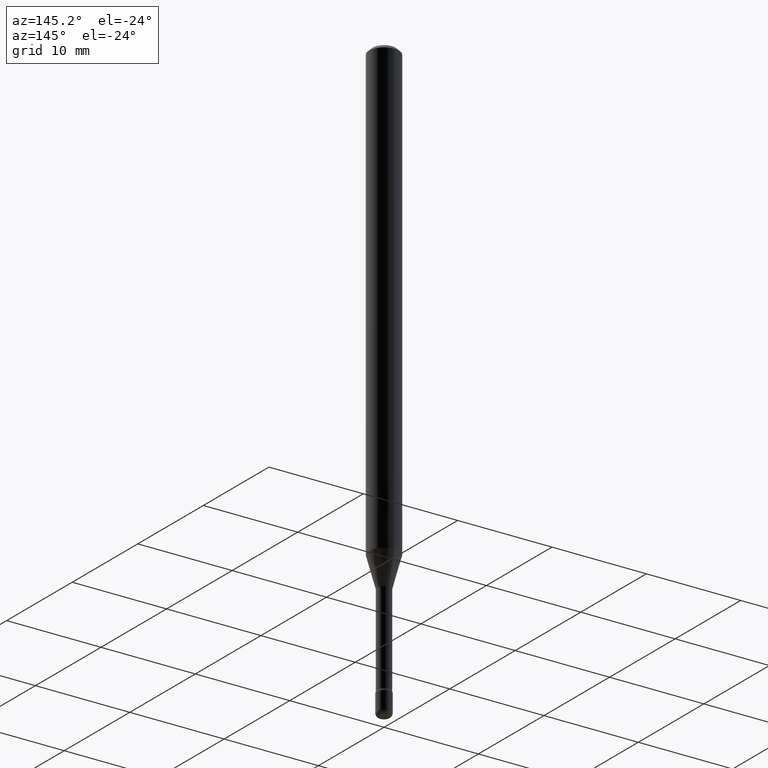
[diagram: clean part render]
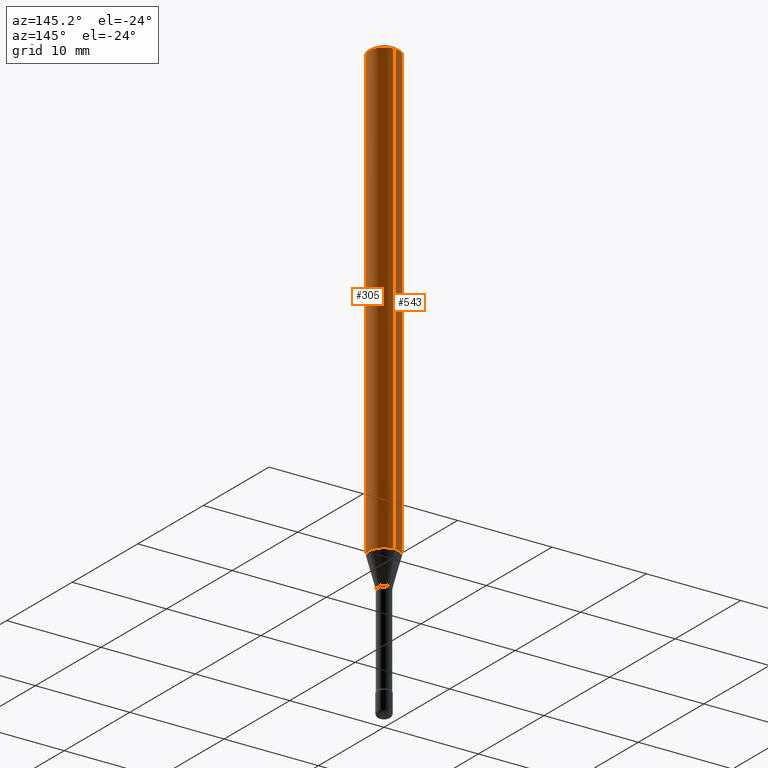
[diagram: same view with one multi-face feature highlighted, each face labeled with its STEP entity id]
A machine part, auxiliary view. The highlighted faces form ONE feature: a constant-radius fillet chain: 2 tangent blend faces with common blend radius 1.5875 mm. The faces share edges in the B-rep.
Their STEP definitions:
[1] entity #543 (Cylinder):
#7 = AXIS2_PLACEMENT_3D ( 'NONE', #520, #309, #563 ) ;
#21 = CARTESIAN_POINT ( 'NONE',  ( 4.440892098500625669E-16, 0.06250000000000000000, 2.598630539589907883E-16 ) ) ;
#34 = DIRECTION ( 'NONE',  ( -2.445549682807936912E-29, 3.491365518916084004E-15, 1.000000000000000000 ) ) ;
#37 = LINE ( 'NONE', #173, #442 ) ;
#41 = CYLINDRICAL_SURFACE ( 'NONE', #7, 0.06250000000000000000 ) ;
#51 = EDGE_CURVE ( 'NONE', #159, #110, #499, .T. ) ;
#74 = CARTESIAN_POINT ( 'NONE',  ( 4.440892098501091590E-16, 0.06249999999999995143, -0.01500000000000024578 ) ) ;
#79 = DIRECTION ( 'NONE',  ( -2.445549682807936912E-29, 3.491365518916084004E-15, 1.000000000000000000 ) ) ;
#99 = ORIENTED_EDGE ( 'NONE', *, *, #556, .T. ) ;
#110 = VERTEX_POINT ( 'NONE', #74 ) ;
#116 = CARTESIAN_POINT ( 'NONE',  ( 3.668324524211912374E-31, -5.237048278374135497E-17, -0.01500000000000002720 ) ) ;
#127 = EDGE_LOOP ( 'NONE', ( #353, #99, #279, #460 ) ) ;
#135 = VECTOR ( 'NONE', #365, 39.37007874015748143 ) ;
#156 = VERTEX_POINT ( 'NONE', #204 ) ;
#159 = VERTEX_POINT ( 'NONE', #511 ) ;
#173 = CARTESIAN_POINT ( 'NONE',  ( -4.364351673553916201E-16, -0.06250000000000000000, 6.962837438235013874E-16 ) ) ;
#204 = CARTESIAN_POINT ( 'NONE',  ( -4.364351673553456197E-16, -0.06250000000000664746, -1.891990657300387513 ) ) ;
#213 = DIRECTION ( 'NONE',  ( -6.982962677686265922E-15, -1.000000000000000000, 3.483106191921935554E-15 ) ) ;
#218 = FACE_OUTER_BOUND ( 'NONE', #127, .T. ) ;
#279 = ORIENTED_EDGE ( 'NONE', *, *, #466, .T. ) ;
#303 = CARTESIAN_POINT ( 'NONE',  ( -4.364351673553912750E-16, -0.06250000000000005551, -0.01499999999999981036 ) ) ;
#308 = CIRCLE ( 'NONE', #322, 0.06250000000000000000 ) ;
#309 = DIRECTION ( 'NONE',  ( -2.445549682807936912E-29, 3.491365518916084004E-15, 1.000000000000000000 ) ) ;
#322 = AXIS2_PLACEMENT_3D ( 'NONE', #566, #79, #514 ) ;
#346 = EDGE_CURVE ( 'NONE', #110, #379, #572, .T. ) ;
#353 = ORIENTED_EDGE ( 'NONE', *, *, #51, .F. ) ;
#365 = DIRECTION ( 'NONE',  ( -2.445549682807936632E-29, 3.491365518916083609E-15, 1.000000000000000000 ) ) ;
#379 = VERTEX_POINT ( 'NONE', #303 ) ;
#432 = DIRECTION ( 'NONE',  ( -2.445549682807936632E-29, 3.491365518916083609E-15, 1.000000000000000000 ) ) ;
#442 = VECTOR ( 'NONE', #432, 39.37007874015748143 ) ;
#460 = ORIENTED_EDGE ( 'NONE', *, *, #346, .F. ) ;
#466 = EDGE_CURVE ( 'NONE', #156, #379, #37, .T. ) ;
#499 = LINE ( 'NONE', #21, #135 ) ;
#510 = AXIS2_PLACEMENT_3D ( 'NONE', #116, #34, #213 ) ;
#511 = CARTESIAN_POINT ( 'NONE',  ( 4.440892098501086659E-16, 0.06249999999999337336, -1.891990657300388179 ) ) ;
#514 = DIRECTION ( 'NONE',  ( -6.982962677686265922E-15, -1.000000000000000000, 4.370956789862821150E-15 ) ) ;
#520 = CARTESIAN_POINT ( 'NONE',  ( -1.169113584055446105E-44, 1.669184350826100908E-30, 4.780733988912460139E-16 ) ) ;
#543 = ADVANCED_FACE ( 'NONE', ( #218 ), #41, .T. ) ;
#556 = EDGE_CURVE ( 'NONE', #159, #156, #308, .T. ) ;
#563 = DIRECTION ( 'NONE',  ( -6.982962677686265922E-15, -1.000000000000000000, 3.491365518916084398E-15 ) ) ;
#566 = CARTESIAN_POINT ( 'NONE',  ( 4.626957151836543505E-29, -6.605630943009950694E-15, -1.891990657300387735 ) ) ;
#572 = CIRCLE ( 'NONE', #510, 0.06250000000000000000 ) ;
[2] entity #305 (Cylinder):
#21 = CARTESIAN_POINT ( 'NONE',  ( 4.440892098500625669E-16, 0.06250000000000000000, 2.598630539589907883E-16 ) ) ;
#37 = LINE ( 'NONE', #173, #442 ) ;
#38 = EDGE_CURVE ( 'NONE', #379, #110, #552, .T. ) ;
#51 = EDGE_CURVE ( 'NONE', #159, #110, #499, .T. ) ;
#74 = CARTESIAN_POINT ( 'NONE',  ( 4.440892098501091590E-16, 0.06249999999999995143, -0.01500000000000024578 ) ) ;
#89 = DIRECTION ( 'NONE',  ( -2.445549682807936912E-29, 3.491365518916084004E-15, 1.000000000000000000 ) ) ;
#92 = CYLINDRICAL_SURFACE ( 'NONE', #400, 0.06250000000000000000 ) ;
#102 = ORIENTED_EDGE ( 'NONE', *, *, #38, .F. ) ;
#110 = VERTEX_POINT ( 'NONE', #74 ) ;
#135 = VECTOR ( 'NONE', #365, 39.37007874015748143 ) ;
#156 = VERTEX_POINT ( 'NONE', #204 ) ;
#159 = VERTEX_POINT ( 'NONE', #511 ) ;
#165 = DIRECTION ( 'NONE',  ( -2.445549682807936912E-29, 3.491365518916084004E-15, 1.000000000000000000 ) ) ;
#173 = CARTESIAN_POINT ( 'NONE',  ( -4.364351673553916201E-16, -0.06250000000000000000, 6.962837438235013874E-16 ) ) ;
#175 = DIRECTION ( 'NONE',  ( -2.445549682807936912E-29, 3.491365518916084004E-15, 1.000000000000000000 ) ) ;
#204 = CARTESIAN_POINT ( 'NONE',  ( -4.364351673553456197E-16, -0.06250000000000664746, -1.891990657300387513 ) ) ;
#229 = CARTESIAN_POINT ( 'NONE',  ( -1.169113584055446105E-44, 1.669184350826100908E-30, 4.780733988912460139E-16 ) ) ;
#278 = EDGE_CURVE ( 'NONE', #156, #159, #330, .T. ) ;
#303 = CARTESIAN_POINT ( 'NONE',  ( -4.364351673553912750E-16, -0.06250000000000005551, -0.01499999999999981036 ) ) ;
#305 = ADVANCED_FACE ( 'NONE', ( #387 ), #92, .T. ) ;
#315 = AXIS2_PLACEMENT_3D ( 'NONE', #480, #89, #448 ) ;
#330 = CIRCLE ( 'NONE', #315, 0.06250000000000000000 ) ;
#365 = DIRECTION ( 'NONE',  ( -2.445549682807936632E-29, 3.491365518916083609E-15, 1.000000000000000000 ) ) ;
#370 = AXIS2_PLACEMENT_3D ( 'NONE', #547, #165, #502 ) ;
#379 = VERTEX_POINT ( 'NONE', #303 ) ;
#387 = FACE_OUTER_BOUND ( 'NONE', #414, .T. ) ;
#388 = DIRECTION ( 'NONE',  ( -6.982962677686265922E-15, -1.000000000000000000, 3.491365518916084398E-15 ) ) ;
#400 = AXIS2_PLACEMENT_3D ( 'NONE', #229, #175, #388 ) ;
#414 = EDGE_LOOP ( 'NONE', ( #429, #501, #102, #483 ) ) ;
#429 = ORIENTED_EDGE ( 'NONE', *, *, #278, .T. ) ;
#432 = DIRECTION ( 'NONE',  ( -2.445549682807936632E-29, 3.491365518916083609E-15, 1.000000000000000000 ) ) ;
#442 = VECTOR ( 'NONE', #432, 39.37007874015748143 ) ;
#448 = DIRECTION ( 'NONE',  ( -6.982962677686265922E-15, -1.000000000000000000, 4.370956789862821150E-15 ) ) ;
#466 = EDGE_CURVE ( 'NONE', #156, #379, #37, .T. ) ;
#480 = CARTESIAN_POINT ( 'NONE',  ( 4.626957151836543505E-29, -6.605630943009950694E-15, -1.891990657300387735 ) ) ;
#483 = ORIENTED_EDGE ( 'NONE', *, *, #466, .F. ) ;
#499 = LINE ( 'NONE', #21, #135 ) ;
#501 = ORIENTED_EDGE ( 'NONE', *, *, #51, .T. ) ;
#502 = DIRECTION ( 'NONE',  ( -6.982962677686265922E-15, -1.000000000000000000, 3.483106191921935554E-15 ) ) ;
#511 = CARTESIAN_POINT ( 'NONE',  ( 4.440892098501086659E-16, 0.06249999999999337336, -1.891990657300388179 ) ) ;
#547 = CARTESIAN_POINT ( 'NONE',  ( 3.668324524211912374E-31, -5.237048278374135497E-17, -0.01500000000000002720 ) ) ;
#552 = CIRCLE ( 'NONE', #370, 0.06250000000000000000 ) ;